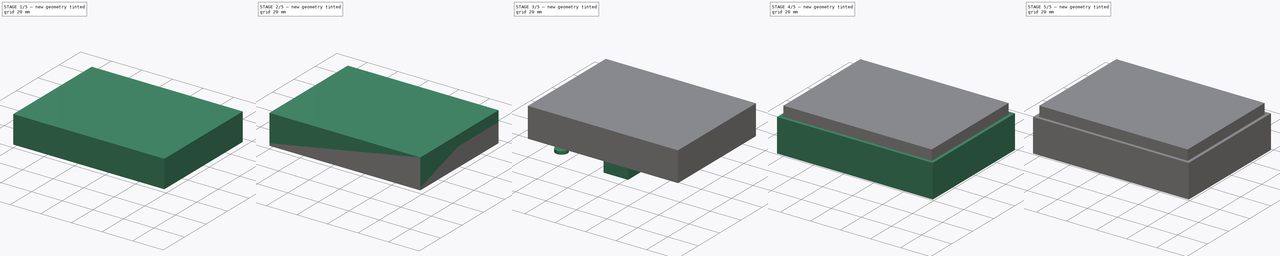
[diagram: build sequence overview — one tinted view per stage of 5, left to right]
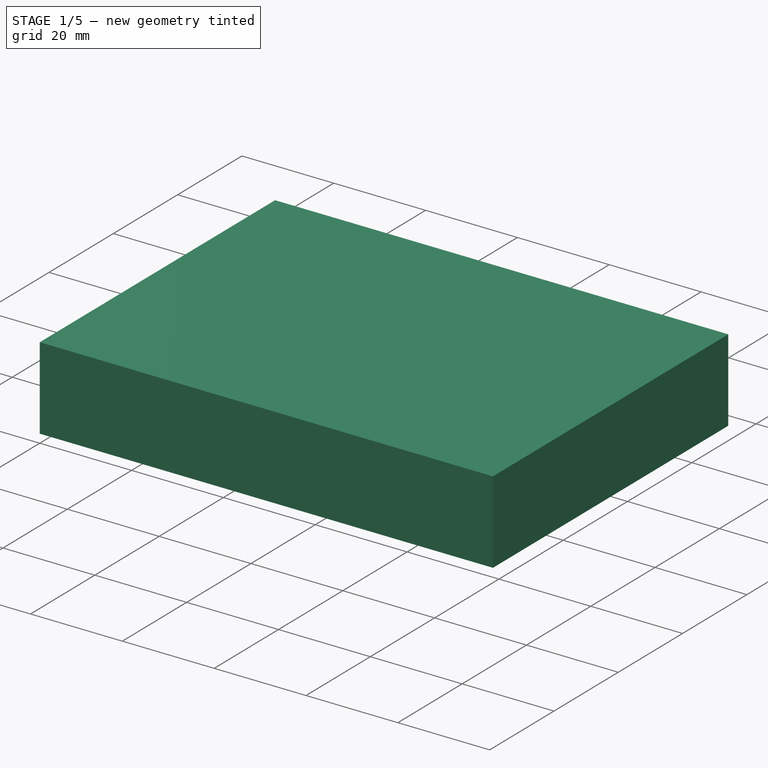
[diagram: stage 1 of 5 — iso view after this stage's code; geometry added in this stage tinted green]
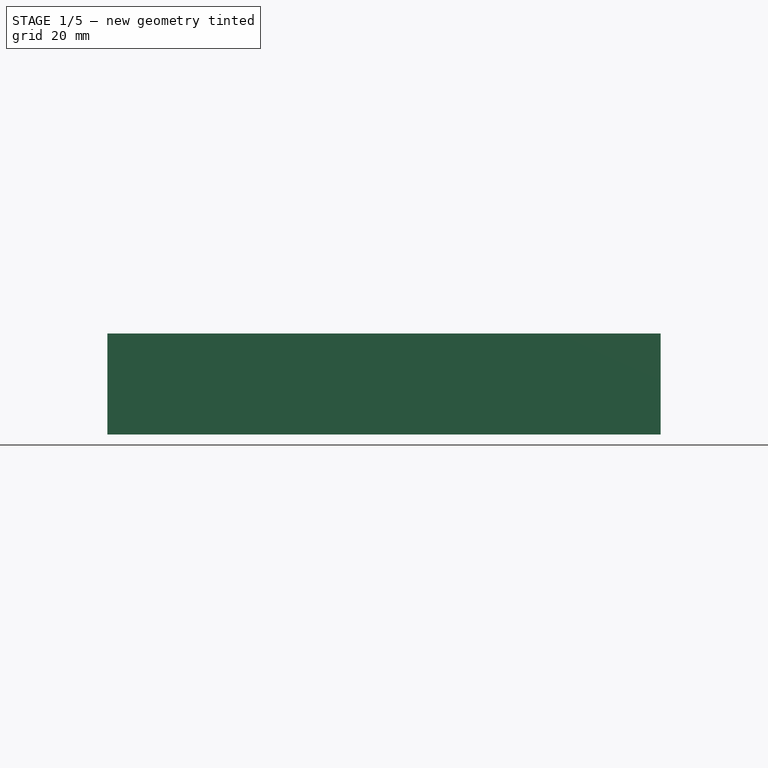
[diagram: stage 1 of 5 — front view after this stage's code; geometry added in this stage tinted green]
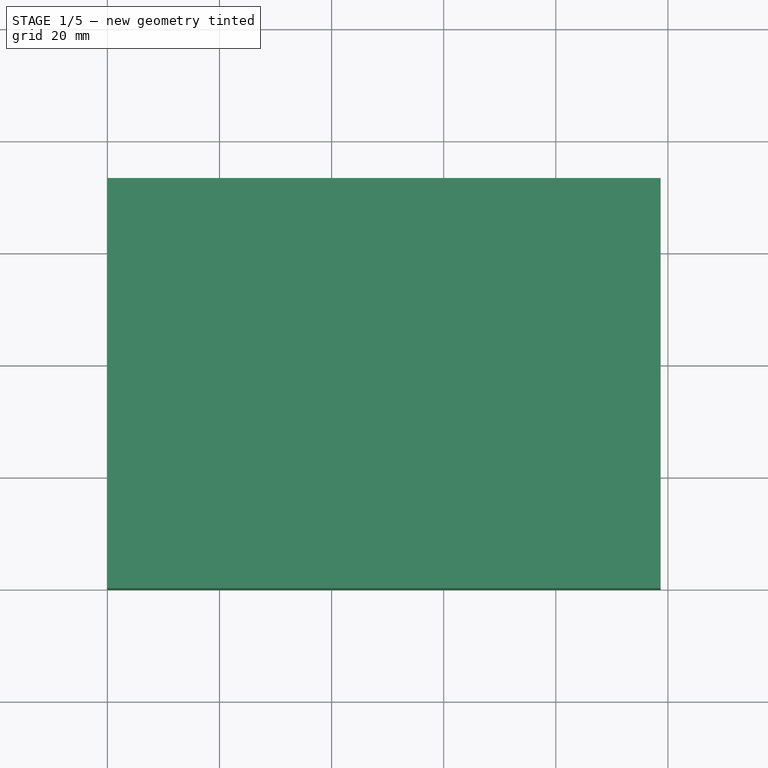
[diagram: stage 1 of 5 — top view after this stage's code; geometry added in this stage tinted green]
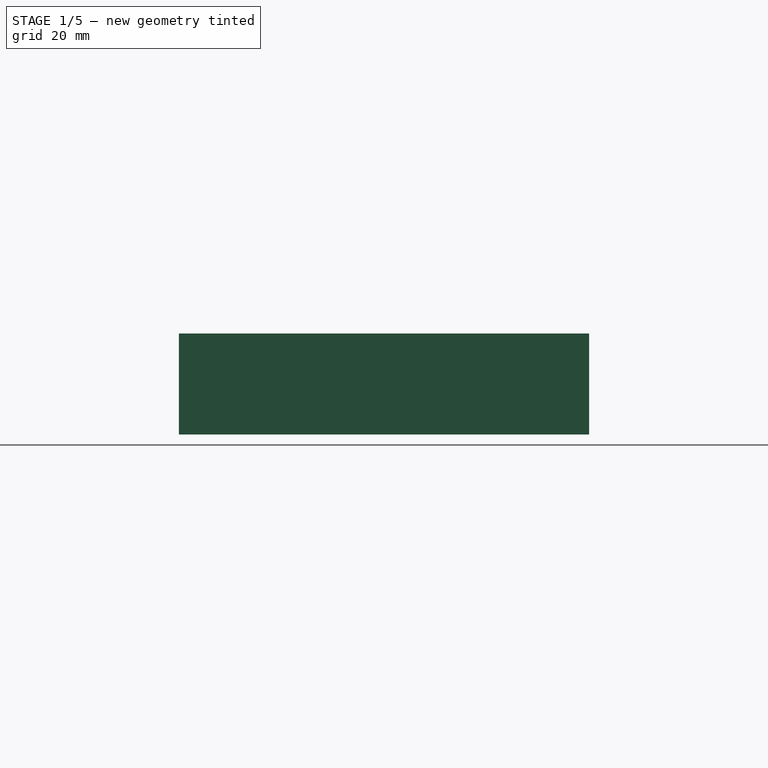
[diagram: stage 1 of 5 — right view after this stage's code; geometry added in this stage tinted green]
FCSTD DOCUMENT  (FreeCAD 0.16RUnknown)
Label: box
License: All rights reserved
LicenseURL: http://en.wikipedia.org/wiki/All_rights_reserved
objects: Part::Box×16, Part::Cut×12, Part::Cylinder×3, Part::MultiFuse×3, Spreadsheet::Sheet×1, App::DocumentObjectGroup×1, Sketcher::SketchObject×1, PartDesign::Chamfer×1
note: 36 computed .brp shape members not serialized (recipe doc carries the construction recipe); baked Part::Feature solids carry a one-line shape summary decoded from their .brp

FEATURE [Part::Box] Box010  label="bottomExternal"
  Height = 18
  Length = 98.7
  Width = 73.2
  expr: Height = rating.bottomHeight
  expr: Width = rating.pcbWidth
  expr: Length = rating.pcbLength
FEATURE [Part::Box] Box011  label="bottomInternal"
  Height = 16
  Length = 94.7
  Placement = pos=(2,2,0) rot=(0,0,1;0rad)
  Width = 69.2
  expr: Placement.Base.y = rating.thickness
  expr: Placement.Base.x = rating.thickness
  expr: Height = rating.bottomHeight - rating.thickness
  expr: Width = rating.pcbWidth - 2 * rating.thickness
  expr: Length = rating.pcbLength - 2 * rating.thickness
FEATURE [Part::Cut] Cut009  label="bottom"
  Base = -> Box010
  Tool = -> Box011
FEATURE [Part::Box] Box012  label="batteryExternal"
  Height = 7
  Length = 56
  Width = 37.8
  expr: Height = rating.batteryHeight + rating.thickness
  expr: Width = rating.batteryWidth + rating.thickness * 2
  expr: Length = rating.batteryLength + rating.thickness * 2
FEATURE [Part::Box] Box013  label="batteryInternal"
  Height = 5
  Length = 52
  Placement = pos=(2,2,0) rot=(0,0,1;0rad)
  Width = 33.8
  expr: Placement.Base.y = rating.thickness
  expr: Placement.Base.x = rating.thickness
  expr: Height = rating.batteryHeight
  expr: Width = rating.batteryWidth
  expr: Length = rating.batteryLength
FEATURE [Part::Cut] Cut010  label="battery"
  Base = -> Box012
  Placement = pos=(42.7,35.4,11) rot=(0,0,1;0rad)
  Tool = -> Box013
  expr: Placement.Base.y = rating.pcbWidth - rating.batteryWidth - 2 * rating.thickness
  expr: Placement.Base.x = rating.pcbLength - rating.batteryLength - 2 * rating.thickness
  expr: Placement.Base.z = rating.bottomHeight - rating.batteryHeight + -rating.thickness
FEATURE [Part::Box] Box015  label="pcb"
  Height = 1.5
  Length = 98.7
  Placement = pos=(0,0,9) rot=(0,0,1;0rad)
  Width = 73.2
  expr: Placement.Base.z = rating.thickness + rating.supportHeight
  expr: Height = rating.pcbThickness
  expr: Width = rating.pcbWidth
  expr: Length = rating.pcbLength
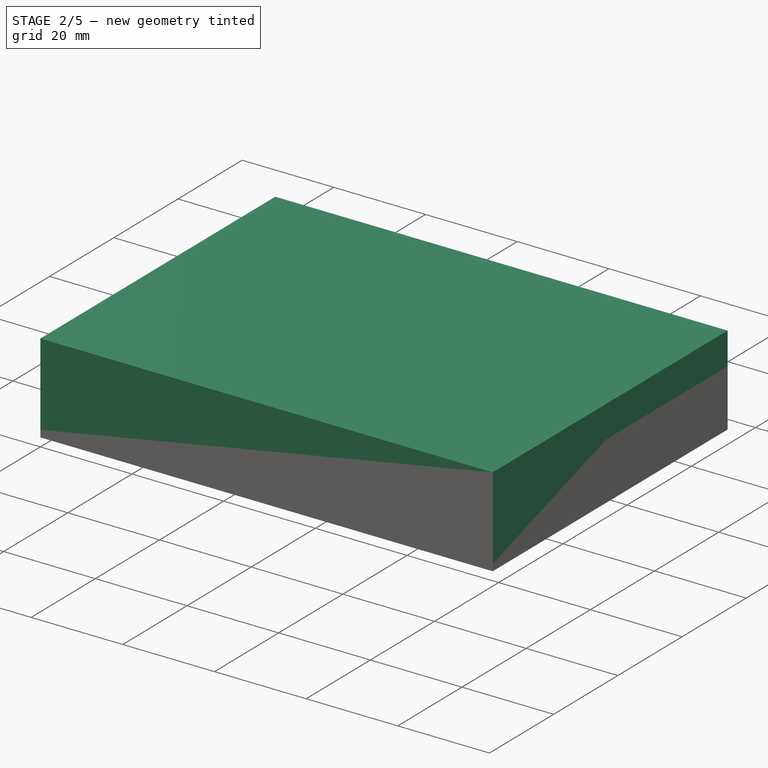
[diagram: stage 2 of 5 — iso view after this stage's code; geometry added in this stage tinted green]
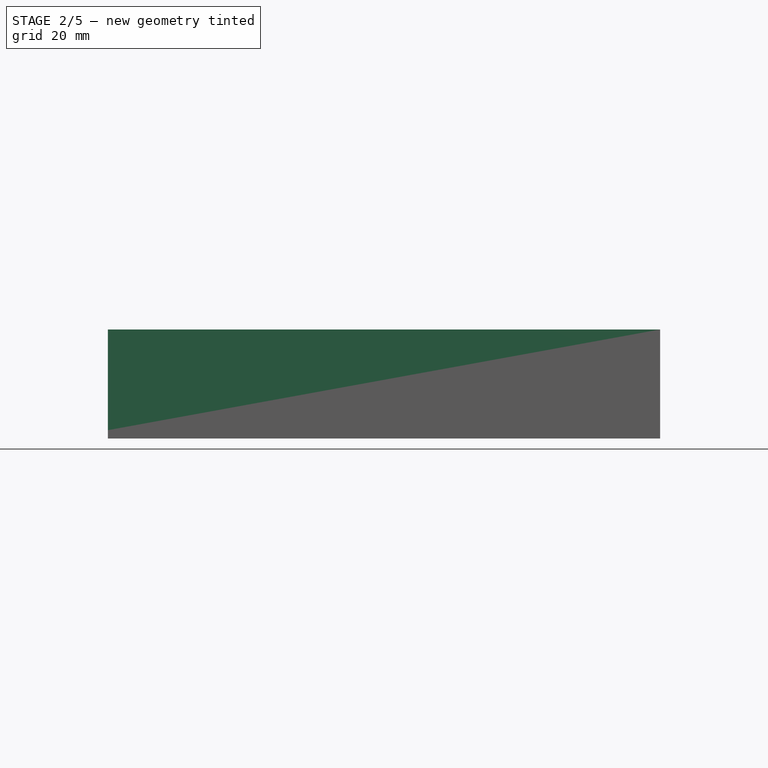
[diagram: stage 2 of 5 — front view after this stage's code; geometry added in this stage tinted green]
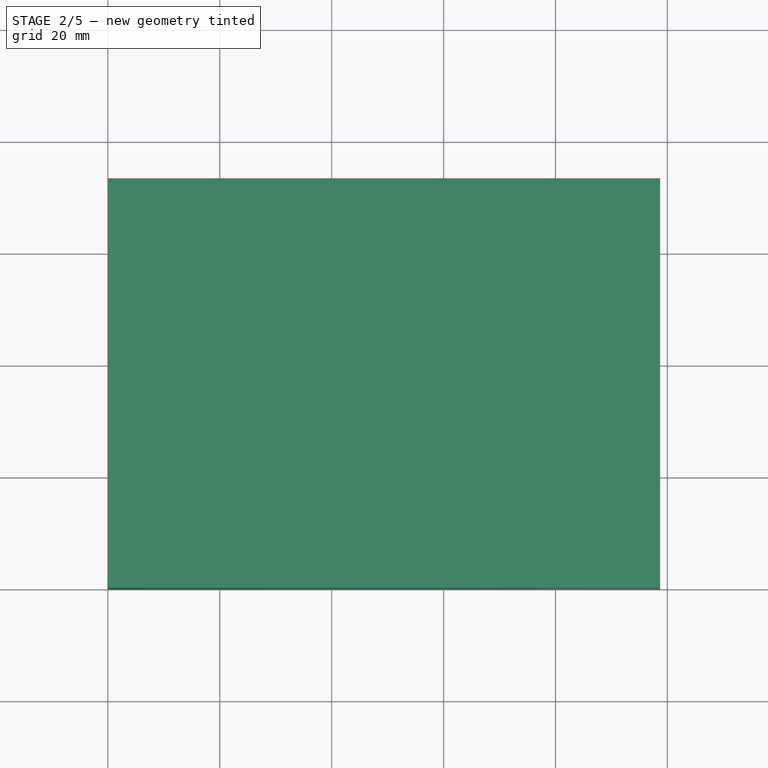
[diagram: stage 2 of 5 — top view after this stage's code; geometry added in this stage tinted green]
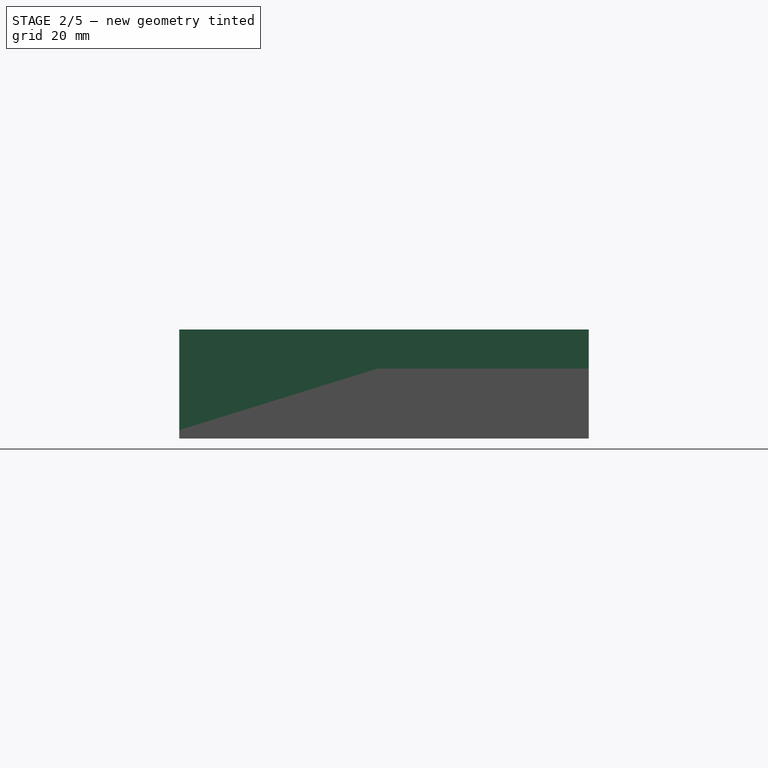
[diagram: stage 2 of 5 — right view after this stage's code; geometry added in this stage tinted green]
FEATURE [Part::Box] Box005  label="Window1"
  Height = 7
  Length = 3
  Placement = pos=(6.55,14.5,10.3) rot=(0,0,1;0rad)
  Width = 1.6
  expr: Placement.Base.y = rating.holeExternal - rating.holeThickness
  expr: Placement.Base.x = (rating.holeExternal - rating.holeWindowWidth) / 2
  expr: Placement.Base.z = rating.holeWindowPos
  expr: Height = rating.holeWindowHeight
  expr: Length = rating.holeWindowWidth
  expr: Width = rating.holeThickness
FEATURE [Part::Box] Box006  label="Window2"
  Height = 7
  Length = 1.6
  Placement = pos=(0,6.55,10.3) rot=(0,0,1;0rad)
  Width = 3
  expr: Placement.Base.y = (rating.holeExternal - rating.holeWindowWidth) / 2
  expr: Length = rating.holeThickness
  expr: Height = rating.holeWindowHeight
  expr: Placement.Base.z = rating.holeWindowPos
  expr: Width = rating.holeWindowWidth
FEATURE [Part::Box] Box007  label="Window3"
  Height = 7
  Length = 1.6
  Placement = pos=(14.5,6.55,10.3) rot=(0,0,1;0rad)
  Width = 3
  expr: Width = rating.holeWindowWidth
  expr: Placement.Base.y = (rating.holeExternal - rating.holeWindowWidth) / 2
  expr: Placement.Base.x = rating.holeExternal - rating.holeThickness
  expr: Height = rating.holeWindowHeight
  expr: Placement.Base.z = rating.holeWindowPos
  expr: Length = rating.holeThickness
FEATURE [Part::MultiFuse] Fusion  label="Windows"
  Shapes = -> [Box007,Box005,Box006]
FEATURE [Part::Box] Box014  label="usbHoleBottom"
  Height = 12.8
  Length = 2
  Placement = pos=(0,38.2,0) rot=(0,0,1;0rad)
  Width = 10
  expr: Height = rating.usbHeight
  expr: Placement.Base.z = 0
  expr: Placement.Base.y = rating.usbY
  expr: Width = rating.usbWidth
  expr: Length = rating.thickness
FEATURE [Part::MultiFuse] Fusion002  label="bottomWithBattery"
  Shapes = -> [Cut010,Cut009]
FEATURE [Part::Cut] Cut011  label="BottomFinal"
  Base = -> Fusion002
  Placement = pos=(0,0,10.5) rot=(0,0,1;0rad)
  Tool = -> Box014
  expr: Placement.Base.z = rating.supportHeight + rating.thickness + rating.pcbThickness
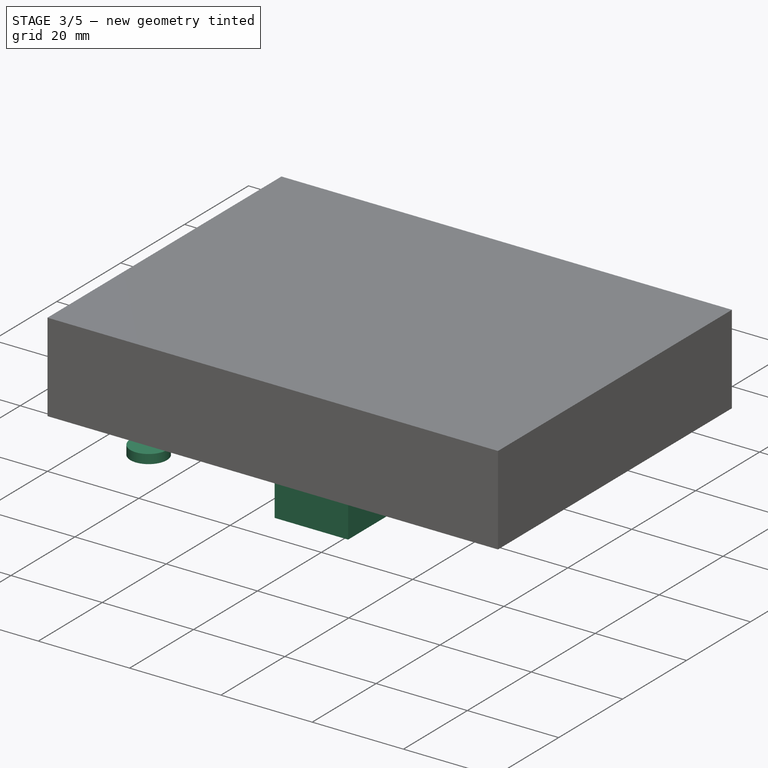
[diagram: stage 3 of 5 — iso view after this stage's code; geometry added in this stage tinted green]
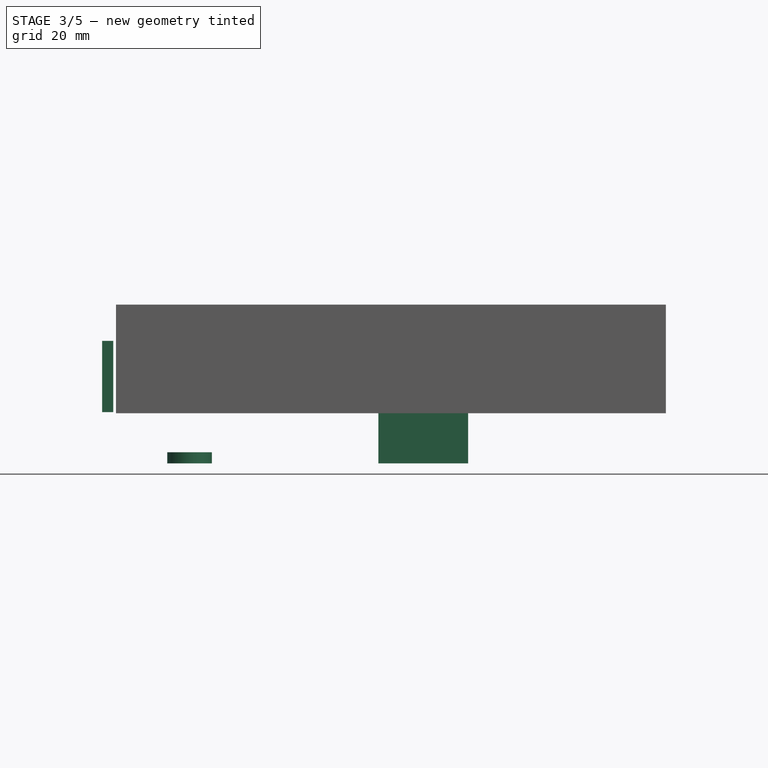
[diagram: stage 3 of 5 — front view after this stage's code; geometry added in this stage tinted green]
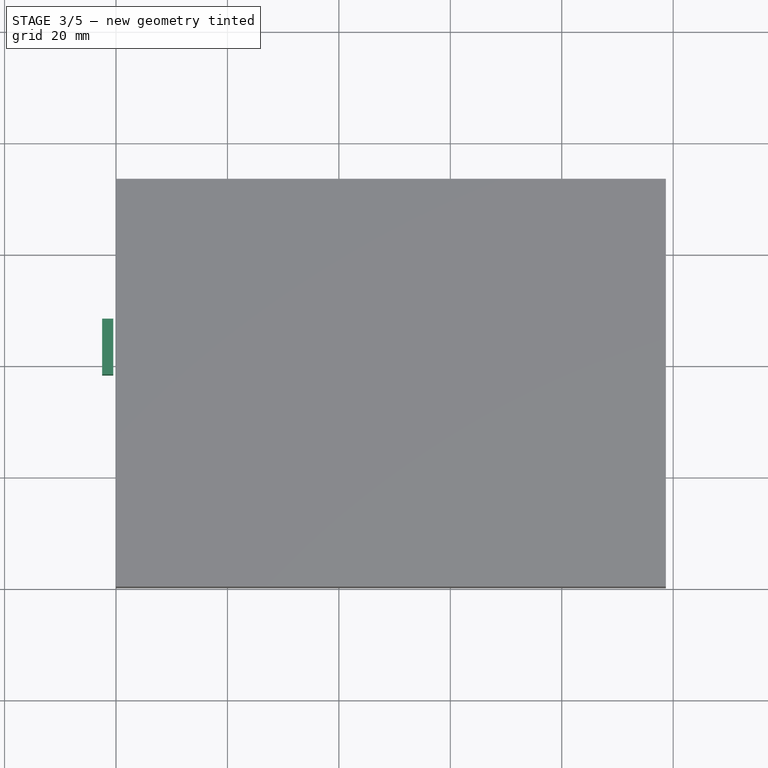
[diagram: stage 3 of 5 — top view after this stage's code; geometry added in this stage tinted green]
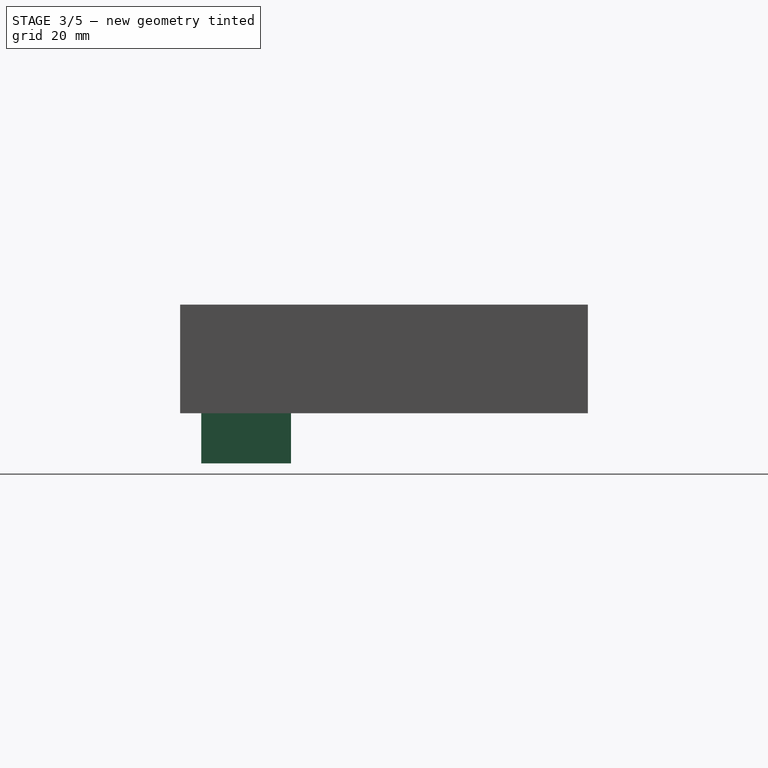
[diagram: stage 3 of 5 — right view after this stage's code; geometry added in this stage tinted green]
FEATURE [Part::Box] Box002  label="HoleFull"
  Height = 22
  Length = 16.1
  Width = 16.1
  expr: Width = rating.holeExternal
  expr: Height = rating.holeHeight
  expr: Length = rating.holeExternal
FEATURE [Part::Box] Box003  label="HoleCut"
  Height = 22
  Length = 12.9
  Placement = pos=(1.6,1.6,0) rot=(0,0,1;0rad)
  Width = 12.9
  expr: Placement.Base.y = (rating.holeExternal - rating.holeInternal) / 2
  expr: Placement.Base.x = (rating.holeExternal - rating.holeInternal) / 2
  expr: Height = rating.holeHeight
  expr: Width = rating.holeInternal
  expr: Length = rating.holeInternal
FEATURE [Part::Cut] Cut005  label="Hole"
  Base = -> Box002
  Tool = -> Box003
FEATURE [Part::Cut] Cut006  label="HoleWindows"
  Base = -> Cut005
  Placement = pos=(47.1,3.8,0) rot=(0,0,1;0rad)
  Tool = -> Fusion
  expr: Placement.Base.y = rating.holeY
  expr: Placement.Base.x = rating.holeX
FEATURE [Part::Cylinder] Cylinder002  label="rotary"
  Angle = 360
  Height = 2
  Placement = pos=(13.2,12.8,0) rot=(0,0,1;0rad)
  Radius = 4
  expr: Placement.Base.y = rating.rotaryY
  expr: Placement.Base.x = rating.rotaryX
  expr: Radius = rating.rotaryDiameter / 2
  expr: Height = rating.thickness
FEATURE [Part::Box] Box009  label="usbHole"
  Height = 12.8
  Length = 2
  Placement = pos=(-2.5,38.2,9.2) rot=(0,0,1;0rad)
  Width = 10
  expr: Height = rating.usbHeight
  expr: Placement.Base.z = rating.boxHeight - rating.usbHeight - rating.thickness
  expr: Placement.Base.x = -rating.thickness - rating.pcbSpace
  expr: Placement.Base.y = rating.usbY
  expr: Width = rating.usbWidth
  expr: Length = rating.thickness
FEATURE [Sketcher::SketchObject] Sketch  label="PCB2D"
  expr: Constraints[9] = rating.pcbWidth
  expr: Constraints[8] = rating.pcbLength
  sketch-geometry (4):
    g0: LineSegment StartX=0 StartY=0 StartZ=0 EndX=98.7 EndY=0 EndZ=0
    g1: LineSegment StartX=98.7 StartY=0 StartZ=0 EndX=98.7 EndY=73.2 EndZ=0
    g2: LineSegment StartX=98.7 StartY=73.2 StartZ=0 EndX=0 EndY=73.2 EndZ=0
    g3: LineSegment StartX=0 StartY=73.2 StartZ=0 EndX=0 EndY=0 EndZ=0
  constraints (10):
    c: Coincident(g0,g1)
    c: Coincident(g1,g2)
    c: Coincident(g2,g3)
    c: Coincident(g3,g0)
    c: Horizontal(g0)
    c: Horizontal(g2)
    c: Vertical(g1)
    c: Vertical(g3)
    c: Distance(g2) = 98.7
    c: Distance(g1) = 73.2
FEATURE [PartDesign::Chamfer] Chamfer
  Base = -> Cut006 [Edge23,Edge22,Edge21,Edge20]
  Placement = pos=(47.1,3.8,0) rot=(0,0,1;0rad)
  Size = 1
  expr: Size = rating.chamfer
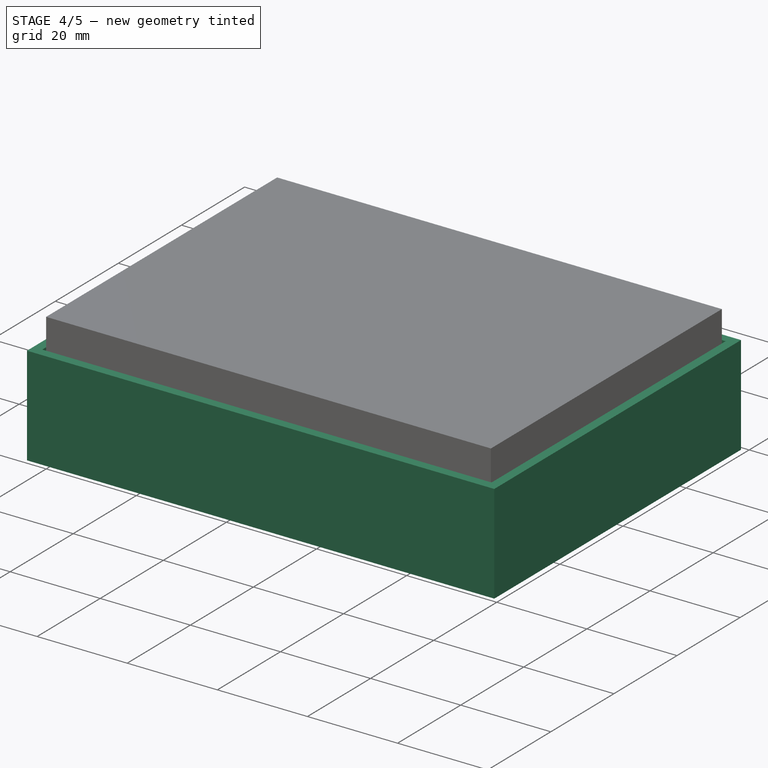
[diagram: stage 4 of 5 — iso view after this stage's code; geometry added in this stage tinted green]
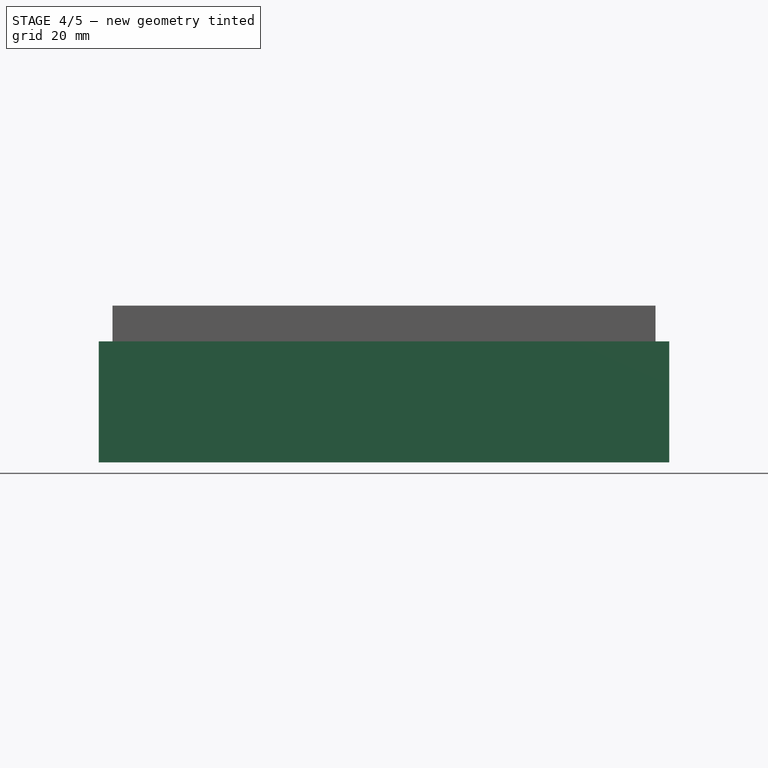
[diagram: stage 4 of 5 — front view after this stage's code; geometry added in this stage tinted green]
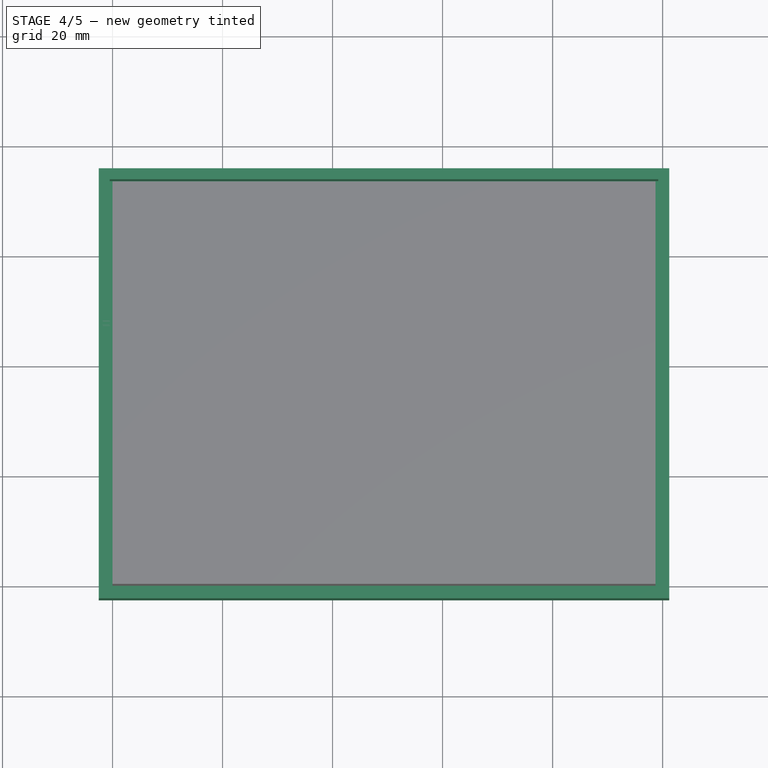
[diagram: stage 4 of 5 — top view after this stage's code; geometry added in this stage tinted green]
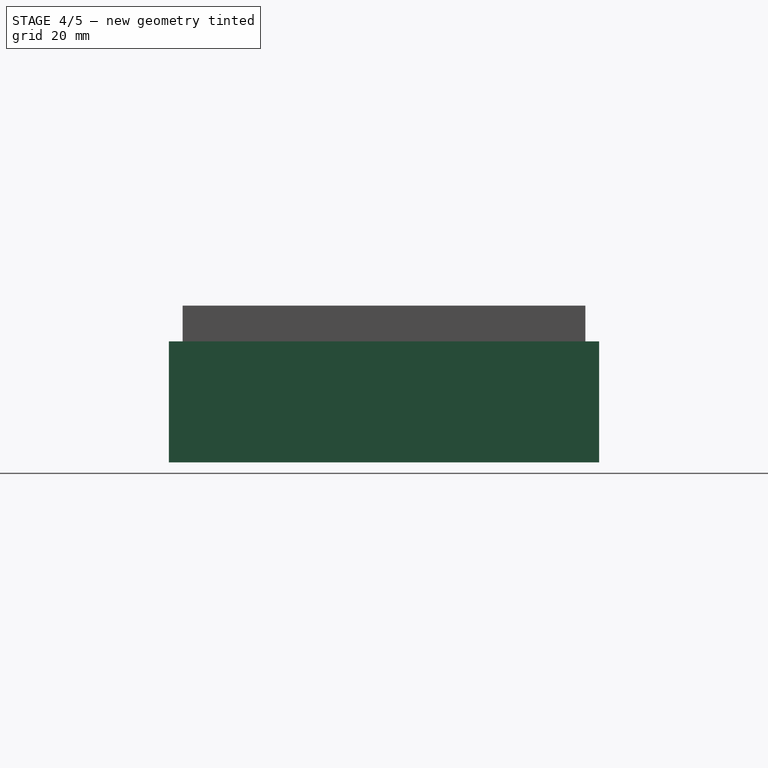
[diagram: stage 4 of 5 — right view after this stage's code; geometry added in this stage tinted green]
FEATURE [Part::Box] Box  label="BoxFull"
  Height = 22
  Length = 103.7
  Width = 78.2
  expr: Placement.Base.z = 0
  expr: Height = rating.boxHeight - rating.thickness
  expr: Length = rating.pcbLength + 2 * (rating.thickness + rating.pcbSpace)
  expr: Width = rating.pcbWidth + 2 * (rating.thickness + rating.pcbSpace)
FEATURE [App::DocumentObjectGroup] Group  label="Supports"
  Group = -> [Cut,Cut001,Cut002,Cut003]
FEATURE [Part::Box] Box001  label="BoxCut"
  Height = 22
  Length = 99.7
  Placement = pos=(2,2,2) rot=(0,0,1;0rad)
  Width = 74.2
  expr: Placement.Base.z = rating.thickness
  expr: Height = rating.boxHeight - rating.thickness
  expr: Placement.Base.y = rating.thickness
  expr: Placement.Base.x = rating.thickness
  expr: Width = rating.pcbWidth + 2 * rating.pcbSpace
  expr: Length = rating.pcbLength + 2 * rating.pcbSpace
FEATURE [Part::Cut] Cut004  label="External"
  Base = -> Box
  Placement = pos=(-2.5,-2.5,0) rot=(0,0,1;0rad)
  Tool = -> Box001
  expr: Placement.Base.y = -rating.thickness - rating.pcbSpace
  expr: Placement.Base.x = -rating.thickness - rating.pcbSpace
FEATURE [Part::Box] Box004  label="hole"
  Height = 2
  Length = 16.1
  Placement = pos=(47.1,3.8,0) rot=(0,0,1;0rad)
  Width = 16.1
  expr: Width = rating.holeExternal
  expr: Length = rating.holeExternal
  expr: Placement.Base.y = rating.holeY
  expr: Placement.Base.x = rating.holeX
  expr: Height = rating.thickness
FEATURE [Part::Box] Box008  label="screen"
  Height = 2
  Length = 71.6
  Placement = pos=(13.4,40.5,0) rot=(0,0,1;0rad)
  Width = 25.1
  expr: Placement.Base.y = rating.screenY
  expr: Placement.Base.x = rating.screenX
  expr: Width = rating.screenWidth
  expr: Length = rating.screenLength
  expr: Height = rating.thickness
FEATURE [Part::MultiFuse] Fusion001  label="HolesInFront"
  Shapes = -> [Cylinder002,Box004,Box008]
FEATURE [Part::Cut] Cut007  label="ExternalWithFrontHoles"
  Base = -> Cut004
  Tool = -> Fusion001
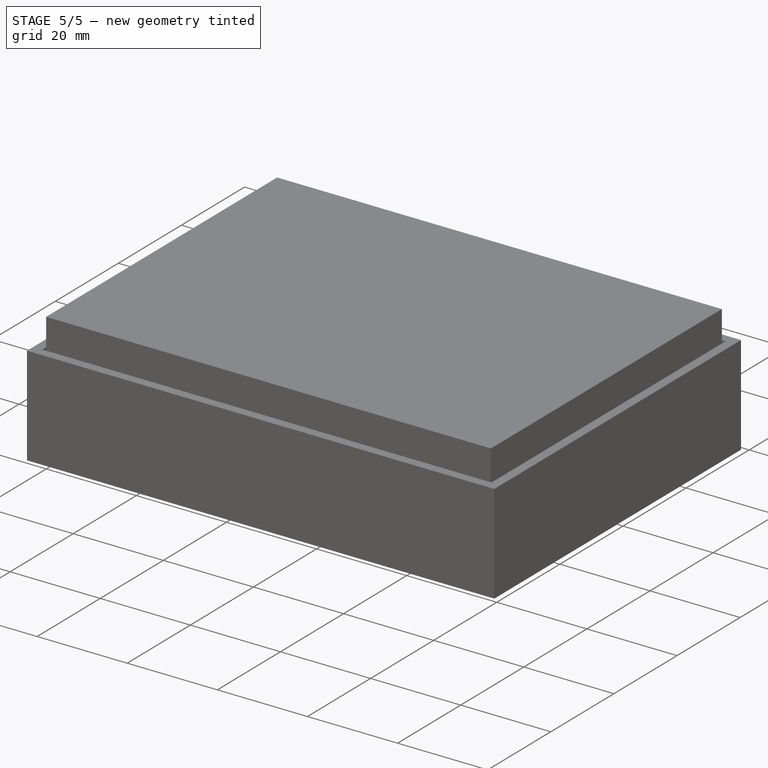
[diagram: stage 5 of 5 — iso view after this stage's code; geometry added in this stage tinted green]
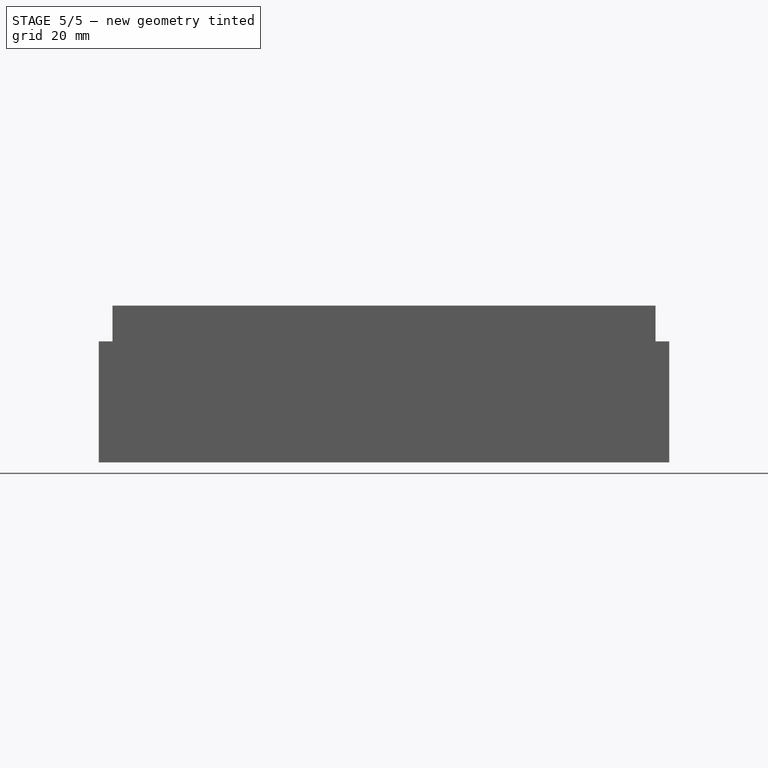
[diagram: stage 5 of 5 — front view after this stage's code; geometry added in this stage tinted green]
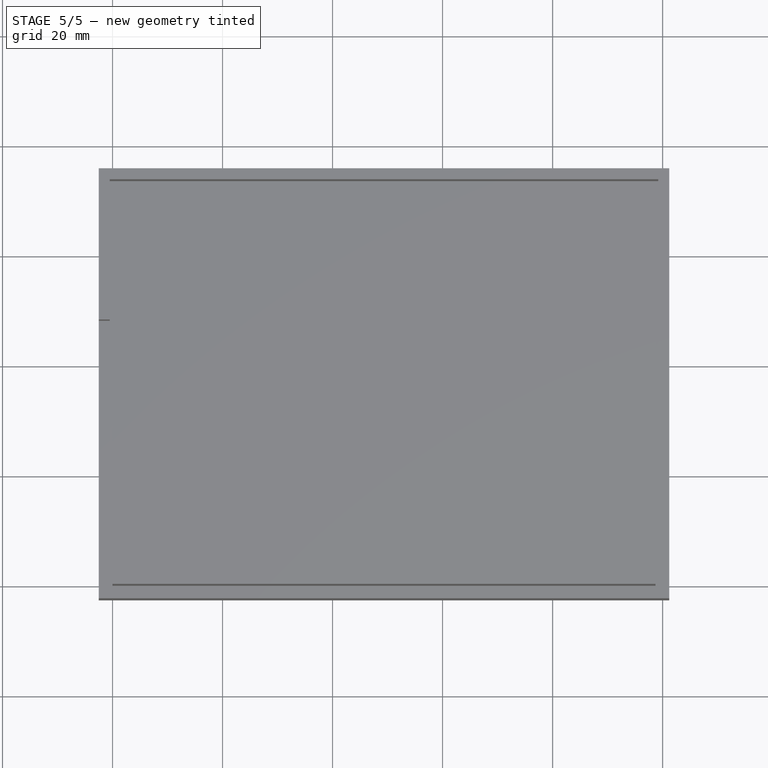
[diagram: stage 5 of 5 — top view after this stage's code; geometry added in this stage tinted green]
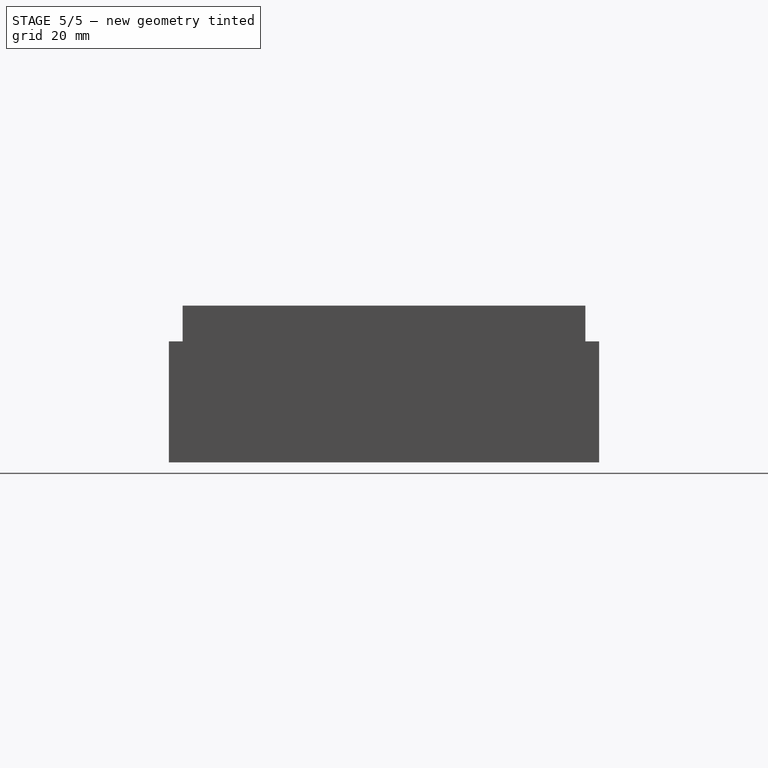
[diagram: stage 5 of 5 — right view after this stage's code; geometry added in this stage tinted green]
FEATURE [Spreadsheet::Sheet] Spreadsheet  label="rating"
  cells = A1=thickness; B1(thickness)=2; A2=pcbLength; B2(pcbLength)=98.7; A3="pcbWidth"; B3(pcbWidth)=73.2; A4=pcbSpace; B4(pcbSpace)=0.5; A5=boxHeight; B5(boxHeight)=24; C5=before: 17; A6=supportIn; B6(supportIn)=2; A7=supportOut; B7(supportOut)=6; A8=supportX; B8(supportX)=3.5; C8=fromP CB corner; A9=supportY; B9(supportY)=3.5; C9=from PCB corner; A10=supportHeight; B10(supportHeight)=7; A11=holeExternal; B11(holeExternal)=16.1; C11=holeThickness; D11(holeThickness)==(holeExternal - holeInternal) / 2; A12=holeInternal; B12(holeInternal)=12.9; A13=holeHeight; B13(holeHeight)=22; A14=holeX; B14(holeX)=47.1; A15=holeY; B15(holeY)=3.8; A16=holeWindowWidth; B16(holeWindowWidth)=3; A17=holeWindowHeight; B17(holeWindowHeight)=7; A18=holeWindowPos; B18(holeWindowPos)==thickness + supportHeight + 1.3; A19=rotaryDiameter; B19(rotaryDiameter)=8; A20=rotaryX; B20(rotaryX)=13.2; A21=rotaryY; B21(rotaryY)=12.8; A22=screenX; B22(screenX)=13.4; C22=from PCB; A23=screenY; B23(screenY)=40.5; C23=from PCB; A24=screenLength; B24(screenLength)=71.59999999999999; A25=screenWidth; B25(screenWidth)=25.1; A26=usbWidth; B26(usbWidth)=10; A27=usbHeight; B27(usbHeight)=12.8; C27=before 5.8; A28=usbY; B28(usbY)=38.2; A29=chamfer; B29(chamfer)=1; A30=spaceInOut; B30(spaceInOut)=0.5; A31=bottomHeight; B31(bottomHeight)=18; A32=batteryLength; B32(batteryLength)=52; A33=batteryWidth; B33(batteryWidth)=33.8; A34=batteryHeight; B34(batteryHeight)=5; A35=pcbThickness; B35(pcbThickness)=1.5
FEATURE [Part::Cylinder] Cylinder  label="SupportExt001"
  Angle = 360
  Height = 7
  Radius = 3
  expr: Height = rating.supportHeight
  expr: Radius = rating.supportOut / 2
FEATURE [Part::Cylinder] Cylinder001  label="SupportHole001"
  Angle = 360
  Height = 7
  Radius = 1
  expr: Height = rating.supportHeight
  expr: Radius = rating.supportIn / 2
FEATURE [Part::Cut] Cut  label="Support001"
  Base = -> Cylinder
  Placement = pos=(3.5,3.5,2) rot=(0,0,1;0rad)
  Tool = -> Cylinder001
  expr: Placement.Base.z = rating.thickness
  expr: Placement.Base.y = rating.supportY
  expr: Placement.Base.x = rating.supportX
FEATURE [Part::Cut] Cut001  label="Support002"
  Base = -> Cylinder
  Placement = pos=(3.5,69.7,2) rot=(0,0,1;0rad)
  Tool = -> Cylinder001
  expr: Placement.Base.z = rating.thickness
  expr: Placement.Base.y = rating.pcbWidth - rating.supportY
  expr: Placement.Base.x = rating.supportX
FEATURE [Part::Cut] Cut002  label="Support003"
  Base = -> Cylinder
  Placement = pos=(95.2,3.5,2) rot=(0,0,1;0rad)
  Tool = -> Cylinder001
  expr: Placement.Base.z = rating.thickness
  expr: Placement.Base.y = rating.supportY
  expr: Placement.Base.x = Spreadsheet.pcbLength - rating.supportX
FEATURE [Part::Cut] Cut003  label="Support004"
  Base = -> Cylinder
  Placement = pos=(95.2,69.7,2) rot=(0,0,1;0rad)
  Tool = -> Cylinder001
  expr: Placement.Base.z = rating.thickness
  expr: Placement.Base.x = Spreadsheet.pcbLength - rating.supportX
  expr: Placement.Base.y = rating.pcbWidth - rating.supportY
FEATURE [Part::Cut] Cut008  label="FinalBox"
  Base = -> Cut007
  Tool = -> Box009
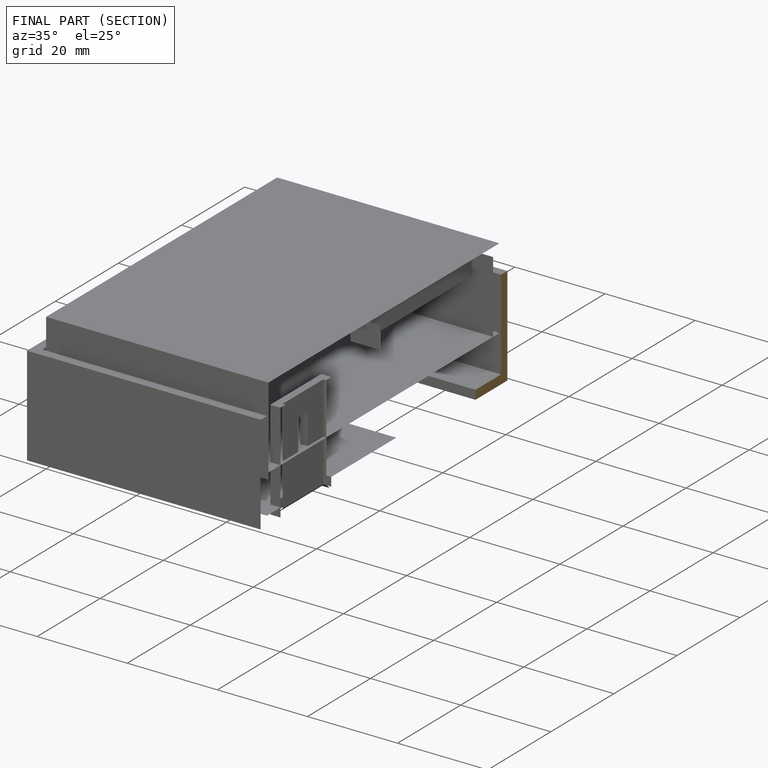
[diagram: finished part — half-section view (interior)]
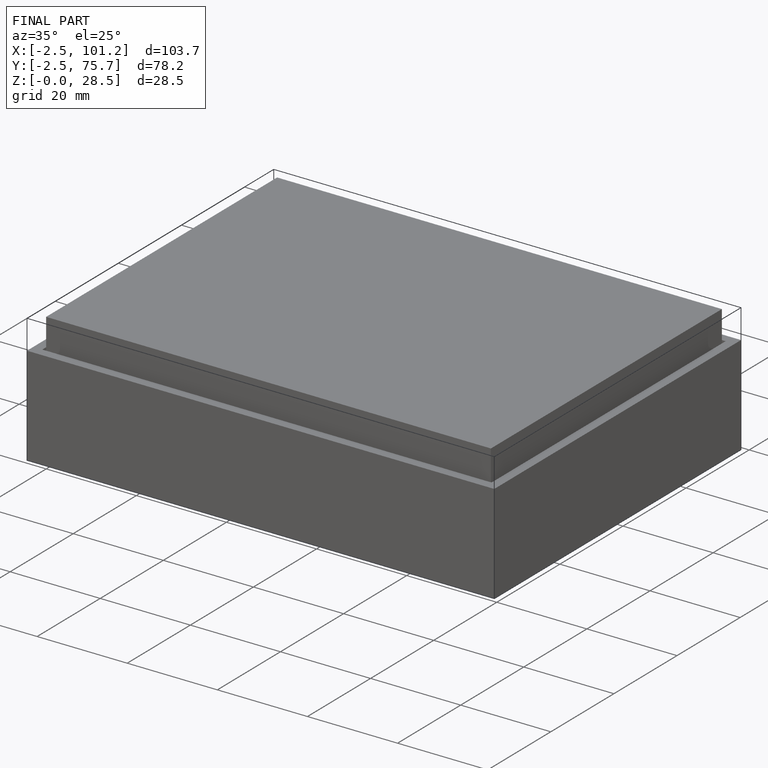
[diagram: finished part — iso view with bounding-box wireframe]
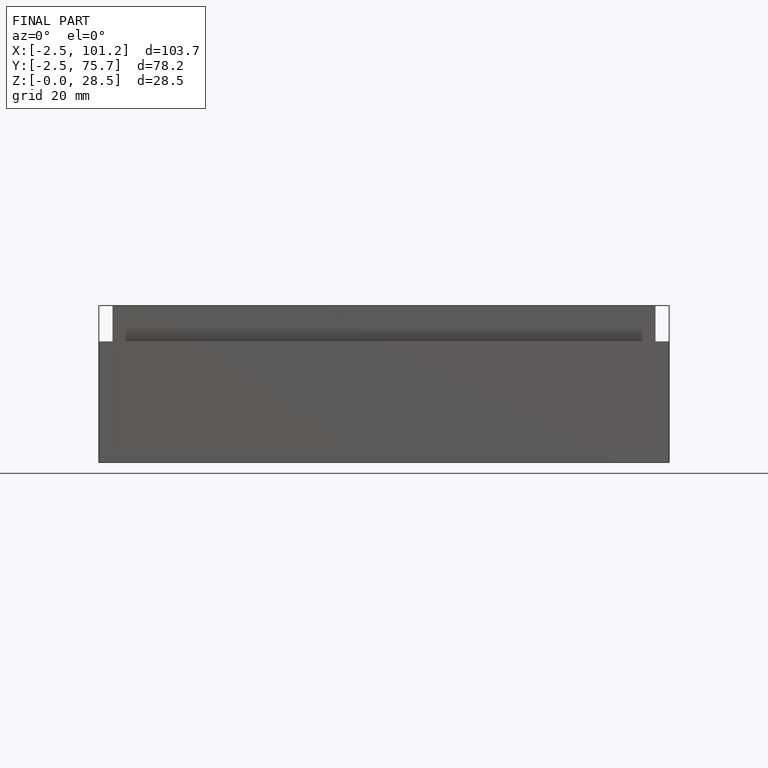
[diagram: finished part — front view with bounding-box wireframe]
